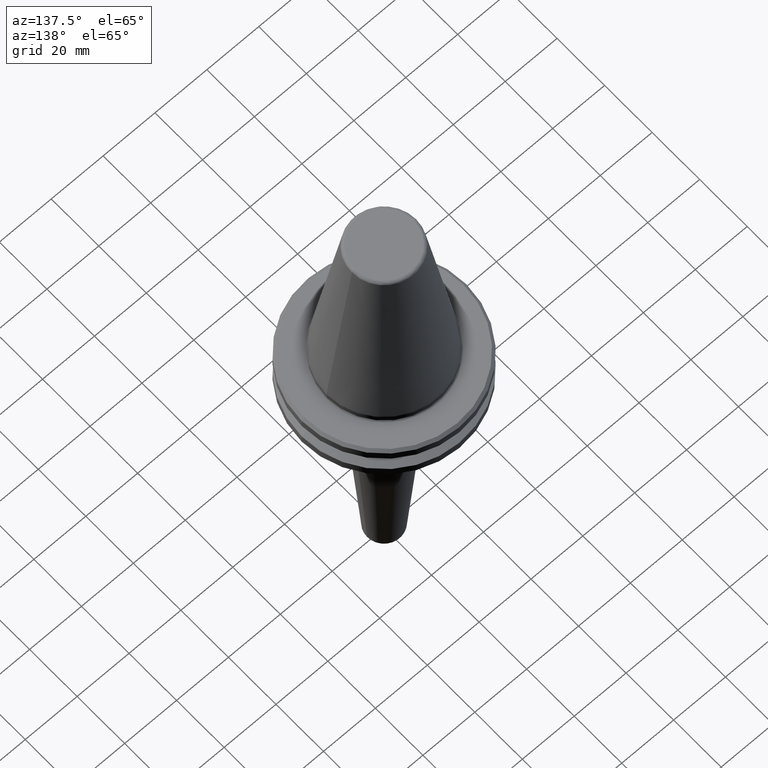
[diagram: clean part render]
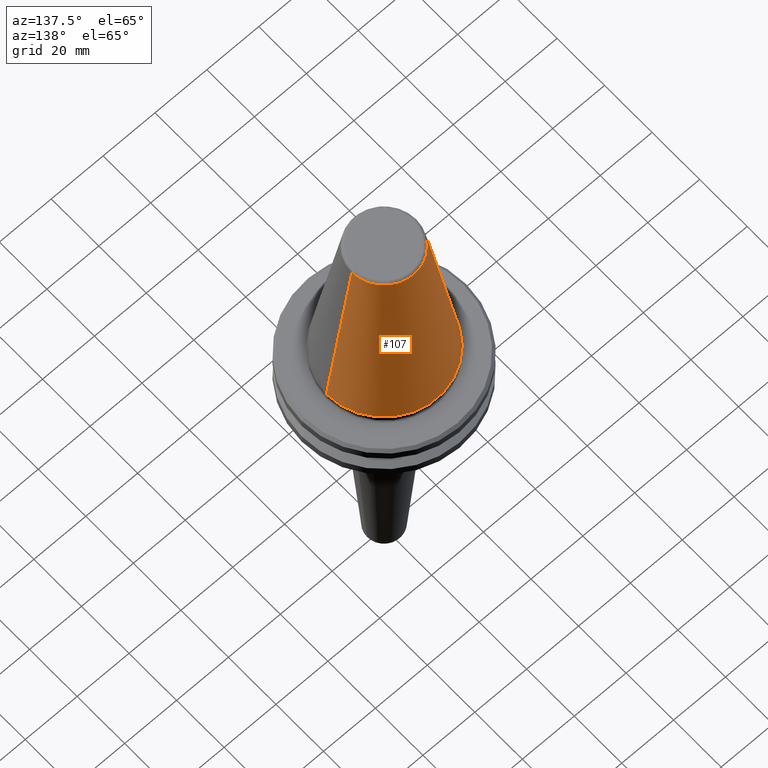
[diagram: same view with one face highlighted and labeled with its STEP entity id]
A machine part, auxiliary view. The second image highlights one B-rep face of the part: STEP entity #107.
In plain terms, the highlighted conical surface has half-angle 8.297 deg.
Its self-contained STEP definition (entity closure, byte-faithful):
#107 = ADVANCED_FACE ( 'NONE', ( #506 ), #928, .T. ) ;
#108 = VECTOR ( 'NONE', #472, 1000.000000000000000 ) ;
#142 = VECTOR ( 'NONE', #873, 1000.000000000000000 ) ;
#209 = AXIS2_PLACEMENT_3D ( 'NONE', #345, #217, #1236 ) ;
#217 = DIRECTION ( 'NONE',  ( 0.0000000000000000000, 0.0000000000000000000, -1.000000000000000000 ) ) ;
#227 = EDGE_LOOP ( 'NONE', ( #590, #941, #335, #1231 ) ) ;
#298 = VERTEX_POINT ( 'NONE', #1033 ) ;
#323 = CARTESIAN_POINT ( 'NONE',  ( 12.37469537611110800, 2.118620309691396900E-015, 67.54430822726729400 ) ) ;
#335 = ORIENTED_EDGE ( 'NONE', *, *, #747, .T. ) ;
#345 = CARTESIAN_POINT ( 'NONE',  ( 0.0000000000000000000, 0.0000000000000000000, 0.0000000000000000000 ) ) ;
#368 = CARTESIAN_POINT ( 'NONE',  ( -22.22500000000000100, 0.0000000000000000000, 0.0000000000000000000 ) ) ;
#439 = CIRCLE ( 'NONE', #1125, 22.22500000000000100 ) ;
#472 = DIRECTION ( 'NONE',  ( -0.1443082272673070500, 0.0000000000000000000, -0.9895327864921743500 ) ) ;
#500 = LINE ( 'NONE', #1126, #142 ) ;
#506 = FACE_OUTER_BOUND ( 'NONE', #227, .T. ) ;
#575 = CARTESIAN_POINT ( 'NONE',  ( 0.0000000000000000000, 0.0000000000000000000, 67.54430822726729400 ) ) ;
#580 = DIRECTION ( 'NONE',  ( -0.0000000000000000000, -0.0000000000000000000, 1.000000000000000000 ) ) ;
#590 = ORIENTED_EDGE ( 'NONE', *, *, #718, .T. ) ;
#647 = CARTESIAN_POINT ( 'NONE',  ( -12.37469537611110800, 0.0000000000000000000, 67.54430822726729400 ) ) ;
#684 = DIRECTION ( 'NONE',  ( -1.000000000000000000, 0.0000000000000000000, 0.0000000000000000000 ) ) ;
#718 = EDGE_CURVE ( 'NONE', #1017, #1084, #720, .T. ) ;
#720 = CIRCLE ( 'NONE', #932, 12.37469537611110800 ) ;
#721 = EDGE_CURVE ( 'NONE', #1084, #1037, #500, .T. ) ;
#747 = EDGE_CURVE ( 'NONE', #1037, #298, #439, .T. ) ;
#755 = EDGE_CURVE ( 'NONE', #1017, #298, #1157, .T. ) ;
#839 = CARTESIAN_POINT ( 'NONE',  ( 22.22500000000000500, 0.0000000000000000000, 0.0000000000000000000 ) ) ;
#873 = DIRECTION ( 'NONE',  ( 0.1443082272673070500, 1.767266086135363700E-017, -0.9895327864921743500 ) ) ;
#928 = CONICAL_SURFACE ( 'NONE', #209, 22.22500000000000100, 0.1448138465474190500 ) ;
#932 = AXIS2_PLACEMENT_3D ( 'NONE', #575, #1212, #684 ) ;
#941 = ORIENTED_EDGE ( 'NONE', *, *, #721, .T. ) ;
#1017 = VERTEX_POINT ( 'NONE', #647 ) ;
#1033 = CARTESIAN_POINT ( 'NONE',  ( -22.22500000000000500, 2.721777511104993200E-015, 0.0000000000000000000 ) ) ;
#1037 = VERTEX_POINT ( 'NONE', #839 ) ;
#1084 = VERTEX_POINT ( 'NONE', #323 ) ;
#1125 = AXIS2_PLACEMENT_3D ( 'NONE', #1128, #580, #1215 ) ;
#1126 = CARTESIAN_POINT ( 'NONE',  ( 22.22500000000000100, 2.721777511104992800E-015, 0.0000000000000000000 ) ) ;
#1128 = CARTESIAN_POINT ( 'NONE',  ( 0.0000000000000000000, 0.0000000000000000000, 0.0000000000000000000 ) ) ;
#1157 = LINE ( 'NONE', #368, #108 ) ;
#1212 = DIRECTION ( 'NONE',  ( 0.0000000000000000000, 0.0000000000000000000, -1.000000000000000000 ) ) ;
#1215 = DIRECTION ( 'NONE',  ( -1.000000000000000000, 0.0000000000000000000, 6.244223985518314900E-016 ) ) ;
#1231 = ORIENTED_EDGE ( 'NONE', *, *, #755, .F. ) ;
#1236 = DIRECTION ( 'NONE',  ( -1.000000000000000000, 0.0000000000000000000, 0.0000000000000000000 ) ) ;